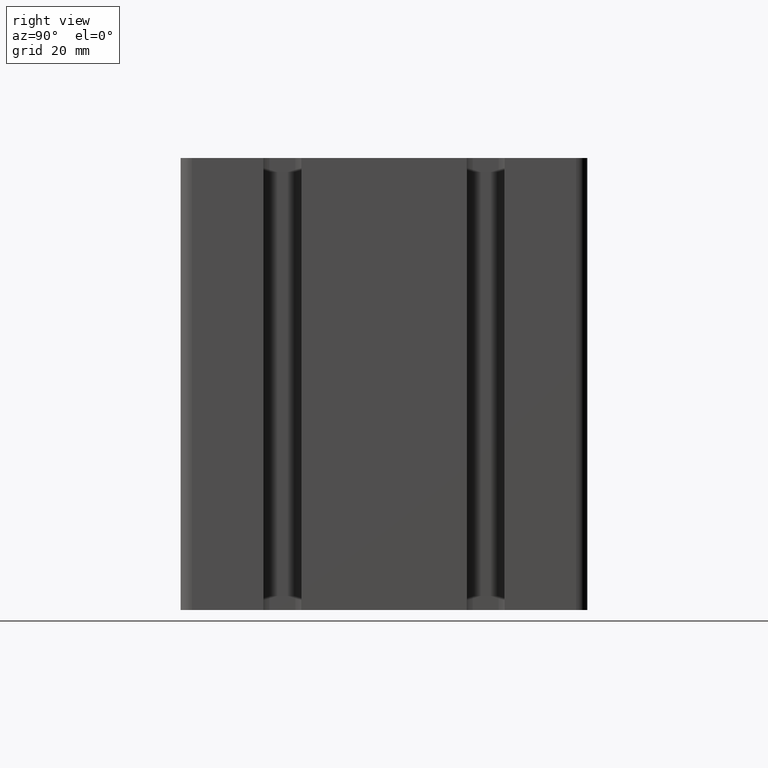
[diagram: clean part render]
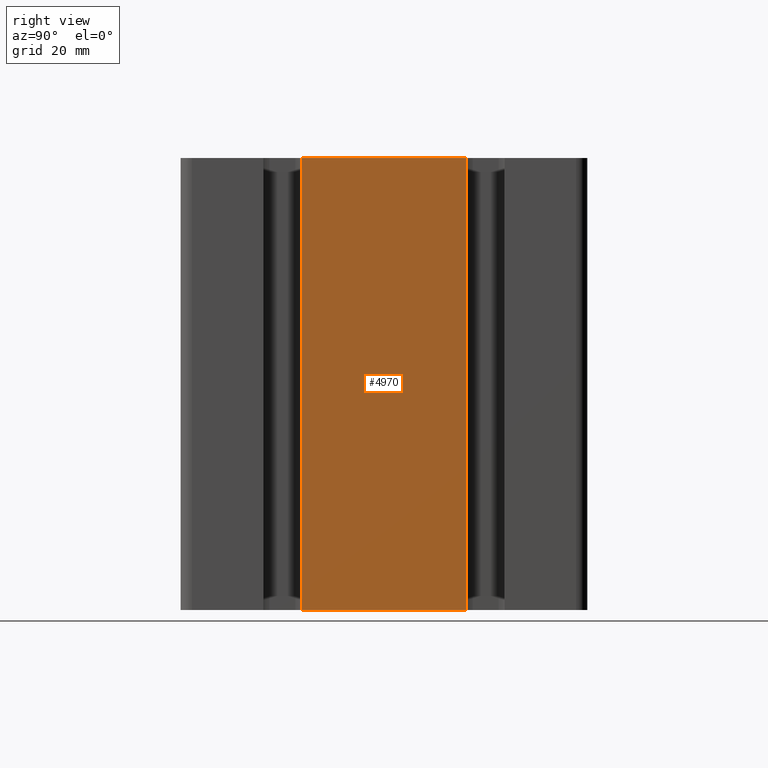
[diagram: same view with one face highlighted and labeled with its STEP entity id]
A machine part, right view. The second image highlights one B-rep face of the part: STEP entity #4970.
In plain terms, the highlighted planar face has unit normal (1, 0, 0).
Its self-contained STEP definition (entity closure, byte-faithful):
#191=PLANE('',#5408);
#435=FACE_OUTER_BOUND('',#697,.T.);
#697=EDGE_LOOP('',(#4378,#4379,#4380,#4381));
#941=LINE('',#7445,#1474);
#1034=LINE('',#7718,#1567);
#1241=LINE('',#8259,#1774);
#1245=LINE('',#8273,#1778);
#1474=VECTOR('',#6008,100.);
#1567=VECTOR('',#6273,100.);
#1774=VECTOR('',#6788,36.6003853595434);
#1778=VECTOR('',#6812,36.6003853595434);
#2182=VERTEX_POINT('',#7443);
#2183=VERTEX_POINT('',#7444);
#2276=VERTEX_POINT('',#7716);
#2277=VERTEX_POINT('',#7717);
#2765=EDGE_CURVE('',#2182,#2183,#941,.T.);
#2900=EDGE_CURVE('',#2276,#2277,#1034,.T.);
#3172=EDGE_CURVE('',#2183,#2276,#1241,.T.);
#3180=EDGE_CURVE('',#2182,#2277,#1245,.T.);
#4378=ORIENTED_EDGE('',*,*,#2765,.T.);
#4379=ORIENTED_EDGE('',*,*,#3172,.T.);
#4380=ORIENTED_EDGE('',*,*,#2900,.T.);
#4381=ORIENTED_EDGE('',*,*,#3180,.F.);
#4970=ADVANCED_FACE('',(#435),#191,.T.);
#5408=AXIS2_PLACEMENT_3D('',#8272,#6810,#6811);
#6008=DIRECTION('',(0.,0.,1.));
#6273=DIRECTION('',(0.,0.,-1.));
#6788=DIRECTION('',(0.,-1.,0.));
#6810=DIRECTION('center_axis',(1.,0.,0.));
#6811=DIRECTION('ref_axis',(0.,1.,0.));
#6812=DIRECTION('',(0.,-1.,0.));
#7443=CARTESIAN_POINT('',(45.,18.3002060782105,0.));
#7444=CARTESIAN_POINT('',(45.,18.3002060782105,100.));
#7445=CARTESIAN_POINT('',(45.,18.3002060782106,0.));
#7716=CARTESIAN_POINT('',(45.,-18.3001792813328,100.));
#7717=CARTESIAN_POINT('',(45.,-18.3001792813328,0.));
#7718=CARTESIAN_POINT('',(45.,-18.3001792813328,0.));
#8259=CARTESIAN_POINT('',(45.,-21.25,100.));
#8272=CARTESIAN_POINT('Origin',(45.,-42.5,0.));
#8273=CARTESIAN_POINT('',(45.,-21.25,0.));